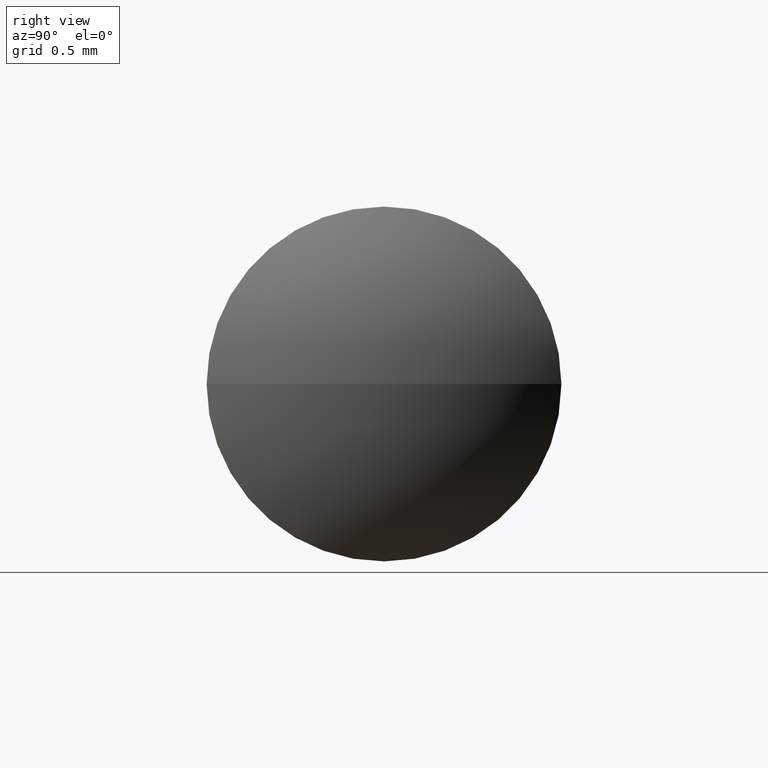
[diagram: clean part render]
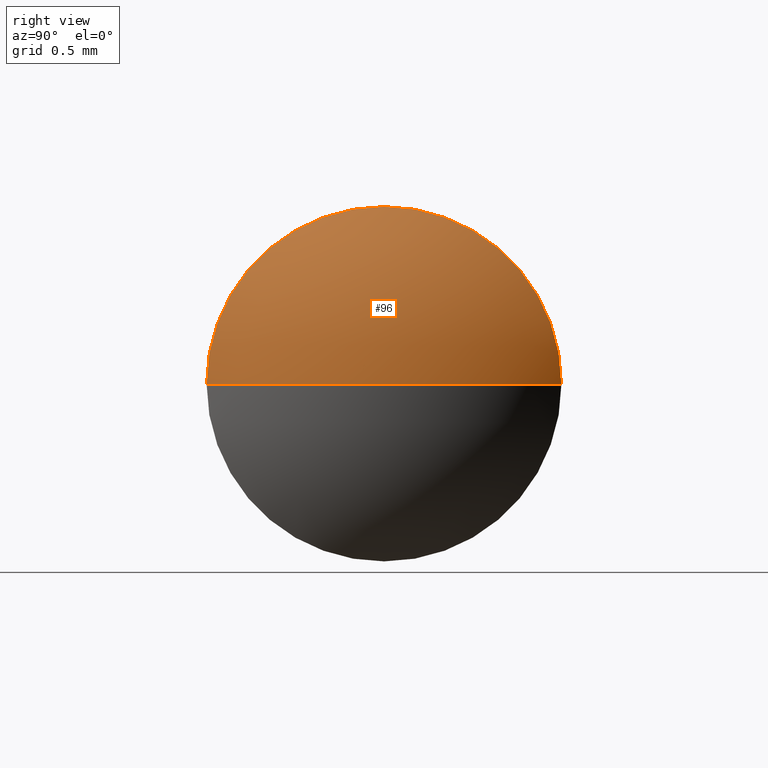
[diagram: same view with one face highlighted and labeled with its STEP entity id]
A machine part, right view. The second image highlights one B-rep face of the part: STEP entity #96.
In plain terms, the highlighted spherical surface has radius 1.5 mm.
Its self-contained STEP definition (entity closure, byte-faithful):
#1 = DIRECTION ( 'NONE',  ( 0.0000000000000000000, 1.000000000000000000, 1.224646799147359400E-016 ) ) ;
#4 = VERTEX_POINT ( 'NONE', #209 ) ;
#26 = EDGE_CURVE ( 'NONE', #54, #275, #186, .T. ) ;
#28 = CIRCLE ( 'NONE', #152, 1.500000000000001300 ) ;
#30 = DIRECTION ( 'NONE',  ( -0.0000000000000000000, 0.0000000000000000000, -1.000000000000000000 ) ) ;
#31 = DIRECTION ( 'NONE',  ( 0.0000000000000000000, 1.000000000000000000, 0.0000000000000000000 ) ) ;
#33 = DIRECTION ( 'NONE',  ( 1.000000000000000000, 0.0000000000000000000, 0.0000000000000000000 ) ) ;
#48 = FACE_OUTER_BOUND ( 'NONE', #74, .T. ) ;
#49 = EDGE_CURVE ( 'NONE', #320, #4, #116, .T. ) ;
#50 = AXIS2_PLACEMENT_3D ( 'NONE', #158, #184, #160 ) ;
#54 = VERTEX_POINT ( 'NONE', #337 ) ;
#56 = DIRECTION ( 'NONE',  ( 0.0000000000000000000, 1.224646799147353200E-016, -1.000000000000000000 ) ) ;
#74 = EDGE_LOOP ( 'NONE', ( #134, #77, #343, #137 ) ) ;
#77 = ORIENTED_EDGE ( 'NONE', *, *, #80, .T. ) ;
#80 = EDGE_CURVE ( 'NONE', #320, #275, #28, .T. ) ;
#96 = ADVANCED_FACE ( 'NONE', ( #48 ), #273, .T. ) ;
#100 = AXIS2_PLACEMENT_3D ( 'NONE', #265, #30, #31 ) ;
#113 = AXIS2_PLACEMENT_3D ( 'NONE', #162, #56, #1 ) ;
#116 = CIRCLE ( 'NONE', #113, 1.500000000000001300 ) ;
#134 = ORIENTED_EDGE ( 'NONE', *, *, #49, .F. ) ;
#135 = CARTESIAN_POINT ( 'NONE',  ( 235.4900289458013800, 133.3448637497280600, 0.0000000000000000000 ) ) ;
#137 = ORIENTED_EDGE ( 'NONE', *, *, #229, .F. ) ;
#152 = AXIS2_PLACEMENT_3D ( 'NONE', #191, #344, #33 ) ;
#158 = CARTESIAN_POINT ( 'NONE',  ( 235.1080629345512700, 133.3448637497280600, 0.0000000000000000000 ) ) ;
#160 = DIRECTION ( 'NONE',  ( 0.0000000000000000000, 0.0000000000000000000, 1.000000000000000000 ) ) ;
#162 = CARTESIAN_POINT ( 'NONE',  ( 233.9900289458013800, 133.3448637497280600, 0.0000000000000000000 ) ) ;
#184 = DIRECTION ( 'NONE',  ( -1.000000000000000000, -0.0000000000000000000, -0.0000000000000000000 ) ) ;
#186 = CIRCLE ( 'NONE', #50, 1.000000000000000900 ) ;
#188 = CARTESIAN_POINT ( 'NONE',  ( 235.1080629345512700, 134.3448637497280600, 0.0000000000000000000 ) ) ;
#191 = CARTESIAN_POINT ( 'NONE',  ( 233.9900289458013800, 133.3448637497280600, 0.0000000000000000000 ) ) ;
#194 = AXIS2_PLACEMENT_3D ( 'NONE', #289, #269, #219 ) ;
#209 = CARTESIAN_POINT ( 'NONE',  ( 235.1080629345512700, 132.3448637497280600, -1.224646799147354200E-016 ) ) ;
#219 = DIRECTION ( 'NONE',  ( 0.0000000000000000000, 0.0000000000000000000, 1.000000000000000000 ) ) ;
#229 = EDGE_CURVE ( 'NONE', #4, #54, #340, .T. ) ;
#265 = CARTESIAN_POINT ( 'NONE',  ( 233.9900289458013800, 133.3448637497280600, 0.0000000000000000000 ) ) ;
#269 = DIRECTION ( 'NONE',  ( -1.000000000000000000, -0.0000000000000000000, -0.0000000000000000000 ) ) ;
#273 = SPHERICAL_SURFACE ( 'NONE', #100, 1.500000000000008700 ) ;
#275 = VERTEX_POINT ( 'NONE', #188 ) ;
#289 = CARTESIAN_POINT ( 'NONE',  ( 235.1080629345512700, 133.3448637497280600, 0.0000000000000000000 ) ) ;
#320 = VERTEX_POINT ( 'NONE', #135 ) ;
#337 = CARTESIAN_POINT ( 'NONE',  ( 235.1080629345512700, 133.3448637497280600, 1.000000000000000900 ) ) ;
#340 = CIRCLE ( 'NONE', #194, 1.000000000000000900 ) ;
#343 = ORIENTED_EDGE ( 'NONE', *, *, #26, .F. ) ;
#344 = DIRECTION ( 'NONE',  ( -0.0000000000000000000, 0.0000000000000000000, 1.000000000000000000 ) ) ;